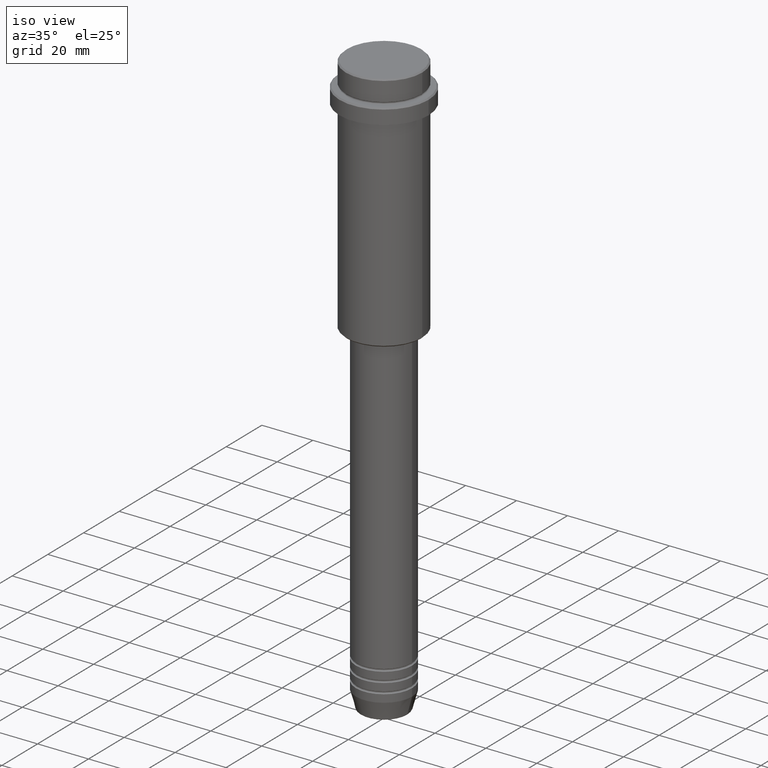
[diagram: clean part render]
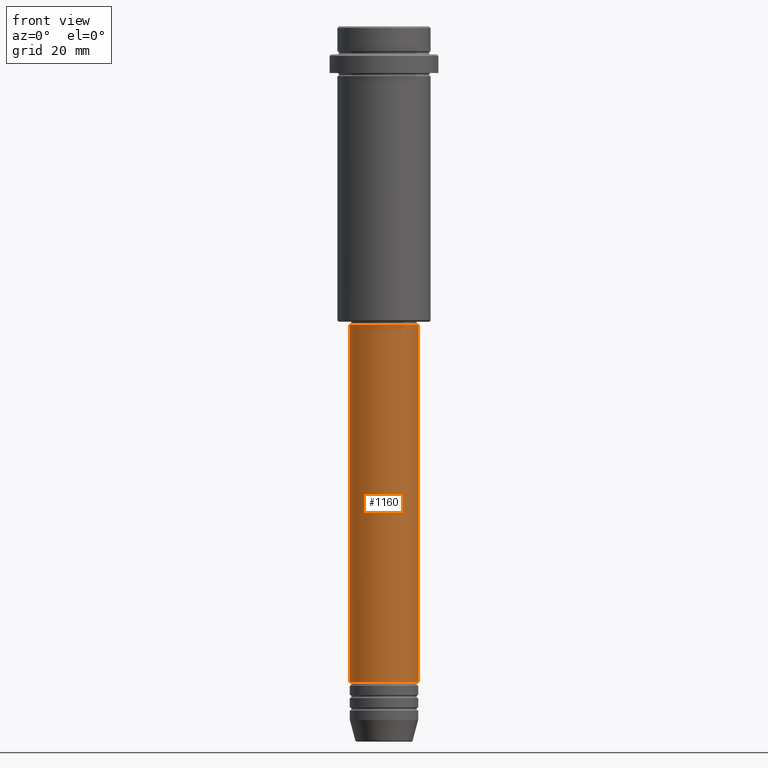
[diagram: tour spotlight — one face highlighted and labeled with its STEP entity id]
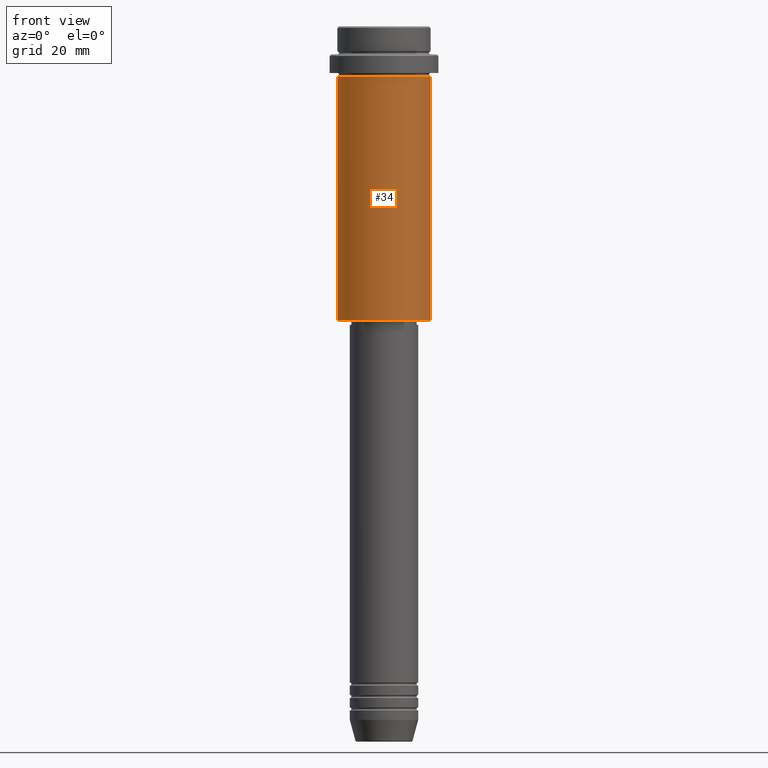
[diagram: tour spotlight — one face highlighted and labeled with its STEP entity id]
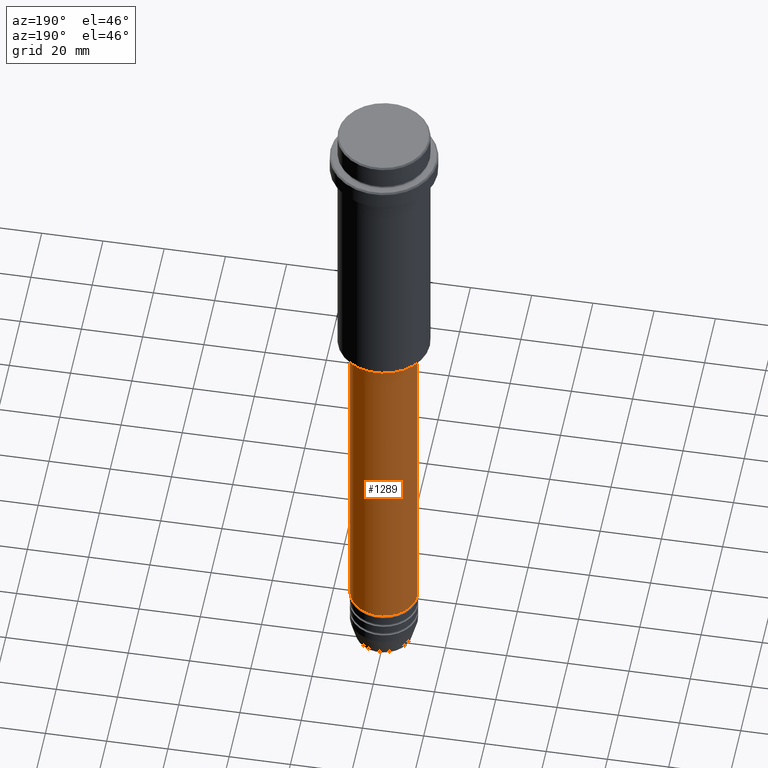
[diagram: tour spotlight — one face highlighted and labeled with its STEP entity id]
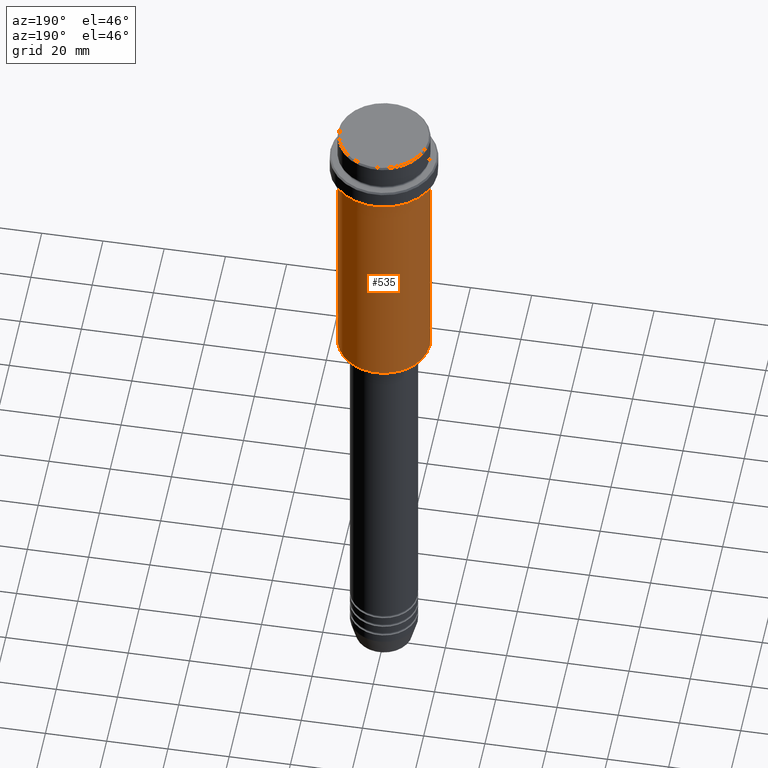
[diagram: tour spotlight — one face highlighted and labeled with its STEP entity id]
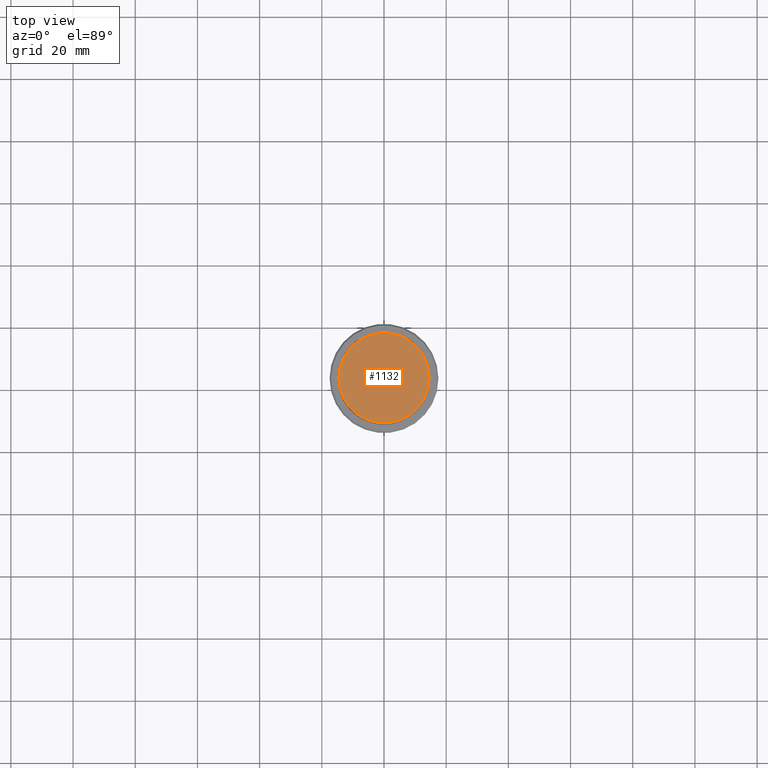
[diagram: tour spotlight — one face highlighted and labeled with its STEP entity id]
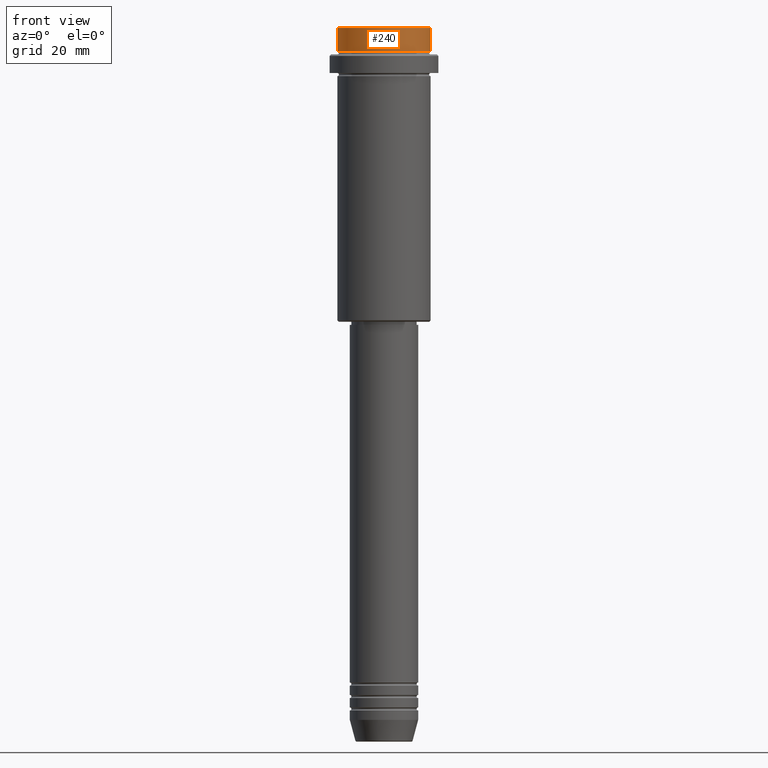
[diagram: tour spotlight — one face highlighted and labeled with its STEP entity id]
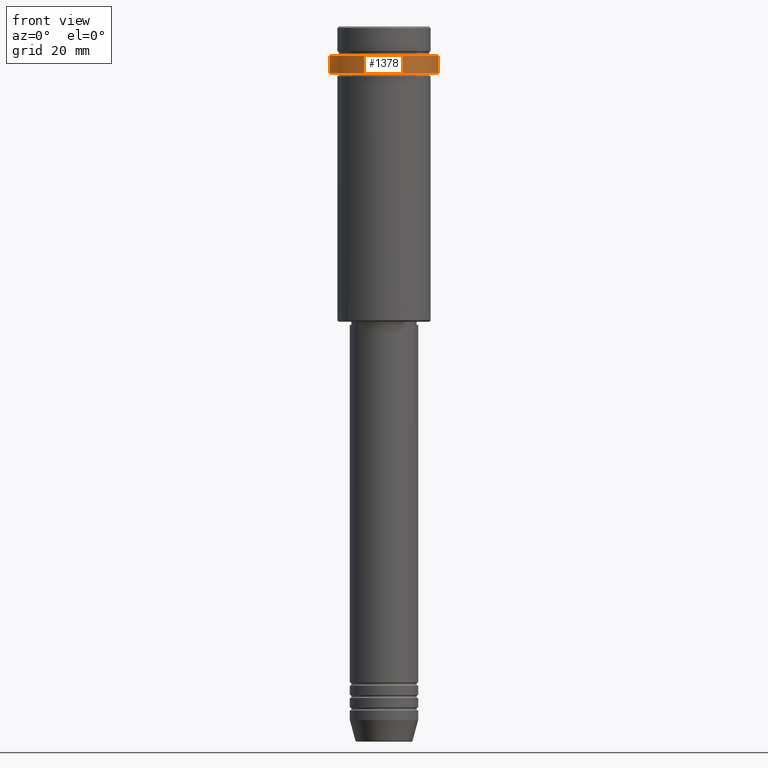
[diagram: tour spotlight — one face highlighted and labeled with its STEP entity id]
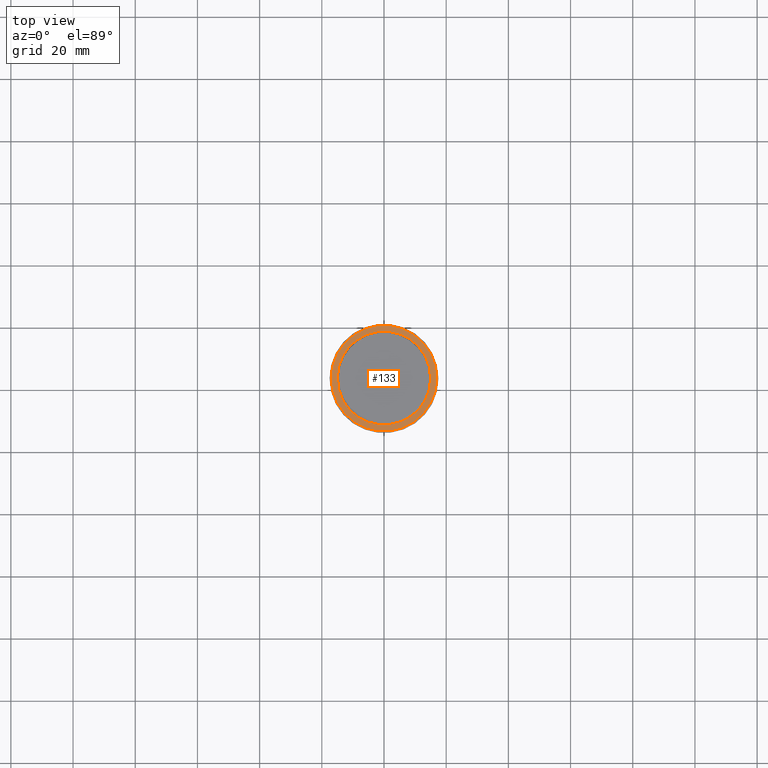
[diagram: tour spotlight — one face highlighted and labeled with its STEP entity id]
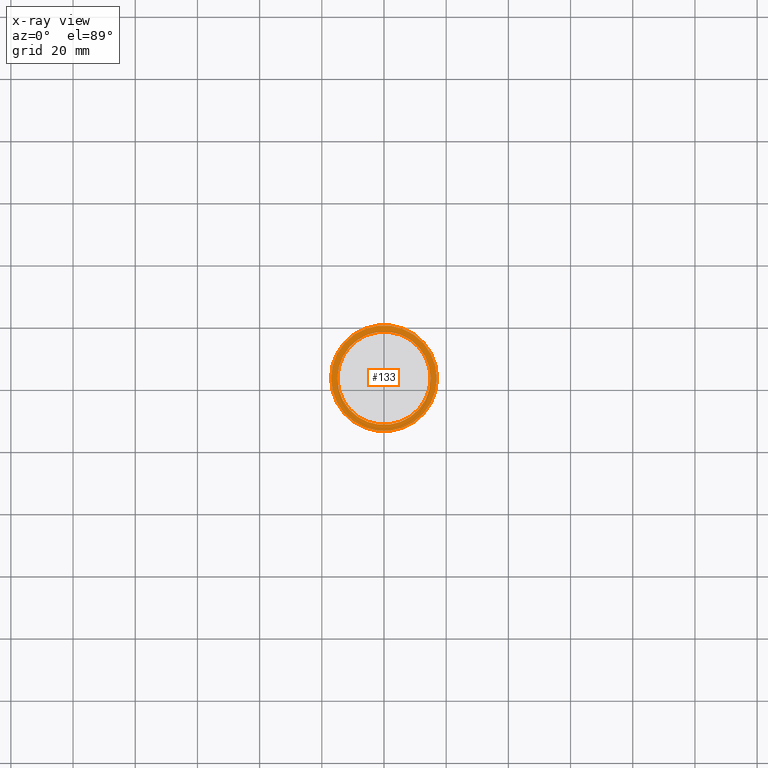
[diagram: x-ray of the same camera — body ghosted, this tour face saturated]
A machine part: a face-by-face anatomy tour. The part has 52 B-rep faces; the first image is the clean iso view, then the 8 largest visible faces are spotlighted one at a time (largest first), each with its STEP entity span.

Face 1 — front view, entity #1160. In plain terms, the highlighted cylindrical surface (edge-blend (fillet) strip) has radius 11 mm, axis along (-0, -0, 1).
Definition (entity closure, byte-faithful):
#98 = EDGE_CURVE ( 'NONE', #656, #1317, #645, .T. ) ;
#171 = FACE_OUTER_BOUND ( 'NONE', #957, .T. ) ;
#201 = VERTEX_POINT ( 'NONE', #1298 ) ;
#209 = CARTESIAN_POINT ( 'NONE',  ( 0.000000000000000000, 0.000000000000000000, -95.99999999999997158 ) ) ;
#212 = ORIENTED_EDGE ( 'NONE', *, *, #98, .T. ) ;
#323 = CARTESIAN_POINT ( 'NONE',  ( -11.00000000000000000, 1.347111479062088405E-15, -210.9999999999998579 ) ) ;
#349 = ORIENTED_EDGE ( 'NONE', *, *, #1293, .F. ) ;
#424 = AXIS2_PLACEMENT_3D ( 'NONE', #599, #1270, #1076 ) ;
#427 = CARTESIAN_POINT ( 'NONE',  ( 10.99999999999999822, 0.000000000000000000, -95.99999999999997158 ) ) ;
#428 = CARTESIAN_POINT ( 'NONE',  ( 0.000000000000000000, 0.000000000000000000, -210.9999999999998579 ) ) ;
#521 = CIRCLE ( 'NONE', #925, 10.99999999999999822 ) ;
#544 = LINE ( 'NONE', #784, #926 ) ;
#552 = DIRECTION ( 'NONE',  ( 1.000000000000000000, 0.000000000000000000, 0.000000000000000000 ) ) ;
#599 = CARTESIAN_POINT ( 'NONE',  ( 0.000000000000000000, 0.000000000000000000, 0.000000000000000000 ) ) ;
#609 = AXIS2_PLACEMENT_3D ( 'NONE', #428, #899, #552 ) ;
#645 = LINE ( 'NONE', #749, #709 ) ;
#656 = VERTEX_POINT ( 'NONE', #1236 ) ;
#709 = VECTOR ( 'NONE', #880, 1000.000000000000000 ) ;
#749 = CARTESIAN_POINT ( 'NONE',  ( 11.00000000000000000, 0.000000000000000000, 0.000000000000000000 ) ) ;
#784 = CARTESIAN_POINT ( 'NONE',  ( -11.00000000000000000, 1.347111479062088405E-15, 0.000000000000000000 ) ) ;
#864 = EDGE_CURVE ( 'NONE', #1320, #656, #1209, .T. ) ;
#880 = DIRECTION ( 'NONE',  ( -0.000000000000000000, -0.000000000000000000, 1.000000000000000000 ) ) ;
#899 = DIRECTION ( 'NONE',  ( -0.000000000000000000, -0.000000000000000000, 1.000000000000000000 ) ) ;
#925 = AXIS2_PLACEMENT_3D ( 'NONE', #209, #1300, #1110 ) ;
#926 = VECTOR ( 'NONE', #982, 1000.000000000000000 ) ;
#957 = EDGE_LOOP ( 'NONE', ( #1402, #1416, #212, #349 ) ) ;
#982 = DIRECTION ( 'NONE',  ( -0.000000000000000000, -0.000000000000000000, 1.000000000000000000 ) ) ;
#1076 = DIRECTION ( 'NONE',  ( 1.000000000000000000, 0.000000000000000000, 0.000000000000000000 ) ) ;
#1110 = DIRECTION ( 'NONE',  ( 1.000000000000000000, 0.000000000000000000, 0.000000000000000000 ) ) ;
#1160 = ADVANCED_FACE ( 'NONE', ( #171 ), #1280, .T. ) ;
#1209 = CIRCLE ( 'NONE', #609, 11.00000000000000000 ) ;
#1236 = CARTESIAN_POINT ( 'NONE',  ( 11.00000000000000000, 0.000000000000000000, -210.9999999999998579 ) ) ;
#1270 = DIRECTION ( 'NONE',  ( -0.000000000000000000, -0.000000000000000000, 1.000000000000000000 ) ) ;
#1280 = CYLINDRICAL_SURFACE ( 'NONE', #424, 11.00000000000000000 ) ;
#1293 = EDGE_CURVE ( 'NONE', #201, #1317, #521, .T. ) ;
#1298 = CARTESIAN_POINT ( 'NONE',  ( -10.99999999999999822, 1.347111479062088207E-15, -95.99999999999997158 ) ) ;
#1300 = DIRECTION ( 'NONE',  ( -0.000000000000000000, -0.000000000000000000, 1.000000000000000000 ) ) ;
#1317 = VERTEX_POINT ( 'NONE', #427 ) ;
#1320 = VERTEX_POINT ( 'NONE', #323 ) ;
#1327 = EDGE_CURVE ( 'NONE', #1320, #201, #544, .T. ) ;
#1402 = ORIENTED_EDGE ( 'NONE', *, *, #1327, .F. ) ;
#1416 = ORIENTED_EDGE ( 'NONE', *, *, #864, .T. ) ;

Face 2 — front view, entity #34. In plain terms, the highlighted cylindrical surface (partial cylindrical patch) has radius 15 mm, axis along (-0, -0, 1).
Definition (entity closure, byte-faithful):
#33 = CARTESIAN_POINT ( 'NONE',  ( 15.00000000000000178, 0.000000000000000000, -16.00000000000000000 ) ) ;
#34 = ADVANCED_FACE ( 'NONE', ( #1061 ), #70, .T. ) ;
#53 = EDGE_CURVE ( 'NONE', #238, #373, #1181, .T. ) ;
#70 = CYLINDRICAL_SURFACE ( 'NONE', #83, 15.00000000000000000 ) ;
#83 = AXIS2_PLACEMENT_3D ( 'NONE', #367, #1023, #137 ) ;
#91 = VECTOR ( 'NONE', #381, 1000.000000000000000 ) ;
#115 = ORIENTED_EDGE ( 'NONE', *, *, #393, .F. ) ;
#129 = CARTESIAN_POINT ( 'NONE',  ( -15.00000000000000355, 1.836970198721029983E-15, -16.00000000000000000 ) ) ;
#137 = DIRECTION ( 'NONE',  ( 1.000000000000000000, 0.000000000000000000, 0.000000000000000000 ) ) ;
#166 = CARTESIAN_POINT ( 'NONE',  ( 15.00000000000000000, 0.000000000000000000, 0.000000000000000000 ) ) ;
#192 = ORIENTED_EDGE ( 'NONE', *, *, #53, .F. ) ;
#238 = VERTEX_POINT ( 'NONE', #129 ) ;
#295 = LINE ( 'NONE', #166, #91 ) ;
#340 = DIRECTION ( 'NONE',  ( -0.000000000000000000, -0.000000000000000000, 1.000000000000000000 ) ) ;
#367 = CARTESIAN_POINT ( 'NONE',  ( 0.000000000000000000, 0.000000000000000000, 0.000000000000000000 ) ) ;
#373 = VERTEX_POINT ( 'NONE', #33 ) ;
#381 = DIRECTION ( 'NONE',  ( -0.000000000000000000, -0.000000000000000000, 1.000000000000000000 ) ) ;
#393 = EDGE_CURVE ( 'NONE', #527, #238, #462, .T. ) ;
#431 = ORIENTED_EDGE ( 'NONE', *, *, #1175, .T. ) ;
#462 = LINE ( 'NONE', #921, #566 ) ;
#527 = VERTEX_POINT ( 'NONE', #545 ) ;
#538 = CARTESIAN_POINT ( 'NONE',  ( 0.000000000000000000, 0.000000000000000000, -94.49999999999992895 ) ) ;
#545 = CARTESIAN_POINT ( 'NONE',  ( -15.00000000000000000, 1.836970198721029589E-15, -94.49999999999992895 ) ) ;
#546 = DIRECTION ( 'NONE',  ( -0.000000000000000000, -0.000000000000000000, 1.000000000000000000 ) ) ;
#561 = AXIS2_PLACEMENT_3D ( 'NONE', #1329, #340, #793 ) ;
#566 = VECTOR ( 'NONE', #955, 1000.000000000000000 ) ;
#573 = EDGE_LOOP ( 'NONE', ( #115, #750, #431, #192 ) ) ;
#750 = ORIENTED_EDGE ( 'NONE', *, *, #841, .T. ) ;
#788 = CIRCLE ( 'NONE', #1105, 15.00000000000000000 ) ;
#793 = DIRECTION ( 'NONE',  ( 1.000000000000000000, 0.000000000000000000, 0.000000000000000000 ) ) ;
#841 = EDGE_CURVE ( 'NONE', #527, #939, #788, .T. ) ;
#921 = CARTESIAN_POINT ( 'NONE',  ( -15.00000000000000000, 1.836970198721029589E-15, 0.000000000000000000 ) ) ;
#939 = VERTEX_POINT ( 'NONE', #1112 ) ;
#955 = DIRECTION ( 'NONE',  ( -0.000000000000000000, -0.000000000000000000, 1.000000000000000000 ) ) ;
#1005 = DIRECTION ( 'NONE',  ( -1.000000000000000000, 0.000000000000000000, 0.000000000000000000 ) ) ;
#1023 = DIRECTION ( 'NONE',  ( -0.000000000000000000, -0.000000000000000000, 1.000000000000000000 ) ) ;
#1061 = FACE_OUTER_BOUND ( 'NONE', #573, .T. ) ;
#1105 = AXIS2_PLACEMENT_3D ( 'NONE', #538, #546, #1005 ) ;
#1112 = CARTESIAN_POINT ( 'NONE',  ( 15.00000000000000000, 0.000000000000000000, -94.49999999999992895 ) ) ;
#1175 = EDGE_CURVE ( 'NONE', #939, #373, #295, .T. ) ;
#1181 = CIRCLE ( 'NONE', #561, 15.00000000000000178 ) ;
#1329 = CARTESIAN_POINT ( 'NONE',  ( 0.000000000000000000, 0.000000000000000000, -16.00000000000000000 ) ) ;

Face 3 — auxiliary view, entity #1289. In plain terms, the highlighted cylindrical surface (edge-blend (fillet) strip) has radius 11 mm, axis along (-0, -0, 1).
Definition (entity closure, byte-faithful):
#13 = AXIS2_PLACEMENT_3D ( 'NONE', #475, #346, #155 ) ;
#19 = ORIENTED_EDGE ( 'NONE', *, *, #245, .T. ) ;
#62 = AXIS2_PLACEMENT_3D ( 'NONE', #564, #929, #1353 ) ;
#98 = EDGE_CURVE ( 'NONE', #656, #1317, #645, .T. ) ;
#155 = DIRECTION ( 'NONE',  ( 1.000000000000000000, 0.000000000000000000, 0.000000000000000000 ) ) ;
#201 = VERTEX_POINT ( 'NONE', #1298 ) ;
#207 = ORIENTED_EDGE ( 'NONE', *, *, #1417, .F. ) ;
#245 = EDGE_CURVE ( 'NONE', #656, #1320, #1015, .T. ) ;
#268 = EDGE_LOOP ( 'NONE', ( #19, #1358, #207, #766 ) ) ;
#323 = CARTESIAN_POINT ( 'NONE',  ( -11.00000000000000000, 1.347111479062088405E-15, -210.9999999999998579 ) ) ;
#346 = DIRECTION ( 'NONE',  ( -0.000000000000000000, -0.000000000000000000, 1.000000000000000000 ) ) ;
#427 = CARTESIAN_POINT ( 'NONE',  ( 10.99999999999999822, 0.000000000000000000, -95.99999999999997158 ) ) ;
#430 = CARTESIAN_POINT ( 'NONE',  ( 0.000000000000000000, 0.000000000000000000, 0.000000000000000000 ) ) ;
#475 = CARTESIAN_POINT ( 'NONE',  ( 0.000000000000000000, 0.000000000000000000, -95.99999999999997158 ) ) ;
#544 = LINE ( 'NONE', #784, #926 ) ;
#564 = CARTESIAN_POINT ( 'NONE',  ( 0.000000000000000000, 0.000000000000000000, -210.9999999999998579 ) ) ;
#615 = CIRCLE ( 'NONE', #13, 10.99999999999999822 ) ;
#645 = LINE ( 'NONE', #749, #709 ) ;
#656 = VERTEX_POINT ( 'NONE', #1236 ) ;
#709 = VECTOR ( 'NONE', #880, 1000.000000000000000 ) ;
#749 = CARTESIAN_POINT ( 'NONE',  ( 11.00000000000000000, 0.000000000000000000, 0.000000000000000000 ) ) ;
#766 = ORIENTED_EDGE ( 'NONE', *, *, #98, .F. ) ;
#784 = CARTESIAN_POINT ( 'NONE',  ( -11.00000000000000000, 1.347111479062088405E-15, 0.000000000000000000 ) ) ;
#880 = DIRECTION ( 'NONE',  ( -0.000000000000000000, -0.000000000000000000, 1.000000000000000000 ) ) ;
#926 = VECTOR ( 'NONE', #982, 1000.000000000000000 ) ;
#929 = DIRECTION ( 'NONE',  ( -0.000000000000000000, -0.000000000000000000, 1.000000000000000000 ) ) ;
#982 = DIRECTION ( 'NONE',  ( -0.000000000000000000, -0.000000000000000000, 1.000000000000000000 ) ) ;
#1015 = CIRCLE ( 'NONE', #62, 11.00000000000000000 ) ;
#1104 = FACE_OUTER_BOUND ( 'NONE', #268, .T. ) ;
#1193 = DIRECTION ( 'NONE',  ( -0.000000000000000000, -0.000000000000000000, 1.000000000000000000 ) ) ;
#1236 = CARTESIAN_POINT ( 'NONE',  ( 11.00000000000000000, 0.000000000000000000, -210.9999999999998579 ) ) ;
#1289 = ADVANCED_FACE ( 'NONE', ( #1104 ), #1400, .T. ) ;
#1298 = CARTESIAN_POINT ( 'NONE',  ( -10.99999999999999822, 1.347111479062088207E-15, -95.99999999999997158 ) ) ;
#1317 = VERTEX_POINT ( 'NONE', #427 ) ;
#1320 = VERTEX_POINT ( 'NONE', #323 ) ;
#1327 = EDGE_CURVE ( 'NONE', #1320, #201, #544, .T. ) ;
#1353 = DIRECTION ( 'NONE',  ( 1.000000000000000000, 0.000000000000000000, 0.000000000000000000 ) ) ;
#1358 = ORIENTED_EDGE ( 'NONE', *, *, #1327, .T. ) ;
#1388 = AXIS2_PLACEMENT_3D ( 'NONE', #430, #1193, #1407 ) ;
#1400 = CYLINDRICAL_SURFACE ( 'NONE', #1388, 11.00000000000000000 ) ;
#1407 = DIRECTION ( 'NONE',  ( 1.000000000000000000, 0.000000000000000000, 0.000000000000000000 ) ) ;
#1417 = EDGE_CURVE ( 'NONE', #1317, #201, #615, .T. ) ;

Face 4 — auxiliary view, entity #535. In plain terms, the highlighted cylindrical surface (partial cylindrical patch) has radius 15 mm, axis along (-0, -0, 1).
Definition (entity closure, byte-faithful):
#33 = CARTESIAN_POINT ( 'NONE',  ( 15.00000000000000178, 0.000000000000000000, -16.00000000000000000 ) ) ;
#91 = VECTOR ( 'NONE', #381, 1000.000000000000000 ) ;
#129 = CARTESIAN_POINT ( 'NONE',  ( -15.00000000000000355, 1.836970198721029983E-15, -16.00000000000000000 ) ) ;
#166 = CARTESIAN_POINT ( 'NONE',  ( 15.00000000000000000, 0.000000000000000000, 0.000000000000000000 ) ) ;
#169 = DIRECTION ( 'NONE',  ( -0.000000000000000000, -0.000000000000000000, 1.000000000000000000 ) ) ;
#172 = ORIENTED_EDGE ( 'NONE', *, *, #355, .F. ) ;
#200 = CIRCLE ( 'NONE', #1121, 15.00000000000000178 ) ;
#213 = CARTESIAN_POINT ( 'NONE',  ( 0.000000000000000000, 0.000000000000000000, -16.00000000000000000 ) ) ;
#216 = CARTESIAN_POINT ( 'NONE',  ( 0.000000000000000000, 0.000000000000000000, 0.000000000000000000 ) ) ;
#238 = VERTEX_POINT ( 'NONE', #129 ) ;
#288 = AXIS2_PLACEMENT_3D ( 'NONE', #922, #327, #459 ) ;
#295 = LINE ( 'NONE', #166, #91 ) ;
#327 = DIRECTION ( 'NONE',  ( -0.000000000000000000, -0.000000000000000000, 1.000000000000000000 ) ) ;
#345 = DIRECTION ( 'NONE',  ( 1.000000000000000000, 0.000000000000000000, 0.000000000000000000 ) ) ;
#355 = EDGE_CURVE ( 'NONE', #373, #238, #200, .T. ) ;
#373 = VERTEX_POINT ( 'NONE', #33 ) ;
#381 = DIRECTION ( 'NONE',  ( -0.000000000000000000, -0.000000000000000000, 1.000000000000000000 ) ) ;
#393 = EDGE_CURVE ( 'NONE', #527, #238, #462, .T. ) ;
#440 = AXIS2_PLACEMENT_3D ( 'NONE', #216, #169, #721 ) ;
#459 = DIRECTION ( 'NONE',  ( -1.000000000000000000, 0.000000000000000000, 0.000000000000000000 ) ) ;
#462 = LINE ( 'NONE', #921, #566 ) ;
#512 = EDGE_CURVE ( 'NONE', #939, #527, #920, .T. ) ;
#527 = VERTEX_POINT ( 'NONE', #545 ) ;
#535 = ADVANCED_FACE ( 'NONE', ( #888 ), #1202, .T. ) ;
#545 = CARTESIAN_POINT ( 'NONE',  ( -15.00000000000000000, 1.836970198721029589E-15, -94.49999999999992895 ) ) ;
#566 = VECTOR ( 'NONE', #955, 1000.000000000000000 ) ;
#657 = DIRECTION ( 'NONE',  ( -0.000000000000000000, -0.000000000000000000, 1.000000000000000000 ) ) ;
#721 = DIRECTION ( 'NONE',  ( 1.000000000000000000, 0.000000000000000000, 0.000000000000000000 ) ) ;
#888 = FACE_OUTER_BOUND ( 'NONE', #1198, .T. ) ;
#920 = CIRCLE ( 'NONE', #288, 15.00000000000000000 ) ;
#921 = CARTESIAN_POINT ( 'NONE',  ( -15.00000000000000000, 1.836970198721029589E-15, 0.000000000000000000 ) ) ;
#922 = CARTESIAN_POINT ( 'NONE',  ( 0.000000000000000000, 0.000000000000000000, -94.49999999999992895 ) ) ;
#930 = ORIENTED_EDGE ( 'NONE', *, *, #393, .T. ) ;
#939 = VERTEX_POINT ( 'NONE', #1112 ) ;
#955 = DIRECTION ( 'NONE',  ( -0.000000000000000000, -0.000000000000000000, 1.000000000000000000 ) ) ;
#970 = ORIENTED_EDGE ( 'NONE', *, *, #512, .T. ) ;
#1112 = CARTESIAN_POINT ( 'NONE',  ( 15.00000000000000000, 0.000000000000000000, -94.49999999999992895 ) ) ;
#1121 = AXIS2_PLACEMENT_3D ( 'NONE', #213, #657, #345 ) ;
#1130 = ORIENTED_EDGE ( 'NONE', *, *, #1175, .F. ) ;
#1175 = EDGE_CURVE ( 'NONE', #939, #373, #295, .T. ) ;
#1198 = EDGE_LOOP ( 'NONE', ( #970, #930, #172, #1130 ) ) ;
#1202 = CYLINDRICAL_SURFACE ( 'NONE', #440, 15.00000000000000000 ) ;

Face 5 — top view, entity #1132. In plain terms, the highlighted planar face has unit normal (0, -0, 1).
Definition (entity closure, byte-faithful):
#36 = CIRCLE ( 'NONE', #1324, 14.50000000000001066 ) ;
#56 = EDGE_CURVE ( 'NONE', #219, #1176, #36, .T. ) ;
#182 = CIRCLE ( 'NONE', #976, 14.50000000000001066 ) ;
#219 = VERTEX_POINT ( 'NONE', #678 ) ;
#259 = ORIENTED_EDGE ( 'NONE', *, *, #56, .T. ) ;
#379 = DIRECTION ( 'NONE',  ( 1.000000000000000000, 0.000000000000000000, 0.000000000000000000 ) ) ;
#382 = AXIS2_PLACEMENT_3D ( 'NONE', #1263, #1068, #591 ) ;
#403 = FACE_OUTER_BOUND ( 'NONE', #795, .T. ) ;
#536 = CARTESIAN_POINT ( 'NONE',  ( 0.000000000000000000, 0.000000000000000000, 0.000000000000000000 ) ) ;
#550 = DIRECTION ( 'NONE',  ( -0.000000000000000000, -0.000000000000000000, 1.000000000000000000 ) ) ;
#591 = DIRECTION ( 'NONE',  ( 1.000000000000000000, 0.000000000000000000, 0.000000000000000000 ) ) ;
#678 = CARTESIAN_POINT ( 'NONE',  ( 14.50000000000001066, 1.806354028742346591E-15, 0.000000000000000000 ) ) ;
#795 = EDGE_LOOP ( 'NONE', ( #946, #259 ) ) ;
#910 = CARTESIAN_POINT ( 'NONE',  ( 0.000000000000000000, 0.000000000000000000, 0.000000000000000000 ) ) ;
#946 = ORIENTED_EDGE ( 'NONE', *, *, #1230, .T. ) ;
#976 = AXIS2_PLACEMENT_3D ( 'NONE', #536, #550, #1002 ) ;
#1002 = DIRECTION ( 'NONE',  ( 1.000000000000000000, 0.000000000000000000, 0.000000000000000000 ) ) ;
#1068 = DIRECTION ( 'NONE',  ( 0.000000000000000000, -0.000000000000000000, 1.000000000000000000 ) ) ;
#1132 = ADVANCED_FACE ( 'NONE', ( #403 ), #1168, .T. ) ;
#1138 = DIRECTION ( 'NONE',  ( -0.000000000000000000, -0.000000000000000000, 1.000000000000000000 ) ) ;
#1168 = PLANE ( 'NONE',  #382 ) ;
#1172 = CARTESIAN_POINT ( 'NONE',  ( -14.50000000000001066, 0.000000000000000000, 0.000000000000000000 ) ) ;
#1176 = VERTEX_POINT ( 'NONE', #1172 ) ;
#1230 = EDGE_CURVE ( 'NONE', #1176, #219, #182, .T. ) ;
#1263 = CARTESIAN_POINT ( 'NONE',  ( 0.000000000000000000, 0.000000000000000000, 0.000000000000000000 ) ) ;
#1324 = AXIS2_PLACEMENT_3D ( 'NONE', #910, #1138, #379 ) ;

Face 6 — front view, entity #240. In plain terms, the highlighted cylindrical surface (partial cylindrical patch) has radius 15 mm, axis along (-0, -0, 1).
Definition (entity closure, byte-faithful):
#8 = AXIS2_PLACEMENT_3D ( 'NONE', #30, #912, #571 ) ;
#22 = DIRECTION ( 'NONE',  ( -0.000000000000000000, -0.000000000000000000, 1.000000000000000000 ) ) ;
#25 = CARTESIAN_POINT ( 'NONE',  ( 0.000000000000000000, 0.000000000000000000, -7.999999999999998224 ) ) ;
#27 = DIRECTION ( 'NONE',  ( 1.000000000000000000, 0.000000000000000000, 0.000000000000000000 ) ) ;
#30 = CARTESIAN_POINT ( 'NONE',  ( 0.000000000000000000, 0.000000000000000000, -0.4999999999999831246 ) ) ;
#31 = DIRECTION ( 'NONE',  ( -0.000000000000000000, -0.000000000000000000, 1.000000000000000000 ) ) ;
#59 = CARTESIAN_POINT ( 'NONE',  ( 15.00000000000000000, 0.000000000000000000, -0.4999999999999831246 ) ) ;
#74 = CARTESIAN_POINT ( 'NONE',  ( -15.00000000000000000, 1.836970198721029589E-15, 0.000000000000000000 ) ) ;
#189 = DIRECTION ( 'NONE',  ( 1.000000000000000000, 0.000000000000000000, 0.000000000000000000 ) ) ;
#198 = ORIENTED_EDGE ( 'NONE', *, *, #306, .T. ) ;
#211 = CARTESIAN_POINT ( 'NONE',  ( 15.00000000000000000, 0.000000000000000000, -7.999999999999998224 ) ) ;
#240 = ADVANCED_FACE ( 'NONE', ( #1083 ), #307, .T. ) ;
#293 = DIRECTION ( 'NONE',  ( -0.000000000000000000, -0.000000000000000000, 1.000000000000000000 ) ) ;
#306 = EDGE_CURVE ( 'NONE', #879, #414, #1255, .T. ) ;
#307 = CYLINDRICAL_SURFACE ( 'NONE', #1252, 15.00000000000000000 ) ;
#414 = VERTEX_POINT ( 'NONE', #59 ) ;
#471 = ORIENTED_EDGE ( 'NONE', *, *, #729, .F. ) ;
#518 = CIRCLE ( 'NONE', #8, 15.00000000000000000 ) ;
#560 = VERTEX_POINT ( 'NONE', #734 ) ;
#571 = DIRECTION ( 'NONE',  ( 1.000000000000000000, 0.000000000000000000, 0.000000000000000000 ) ) ;
#638 = LINE ( 'NONE', #74, #874 ) ;
#667 = CARTESIAN_POINT ( 'NONE',  ( -15.00000000000000000, 1.836970198721029589E-15, -0.4999999999999831246 ) ) ;
#729 = EDGE_CURVE ( 'NONE', #560, #1228, #638, .T. ) ;
#734 = CARTESIAN_POINT ( 'NONE',  ( -15.00000000000000000, 1.836970198721029589E-15, -7.999999999999998224 ) ) ;
#738 = AXIS2_PLACEMENT_3D ( 'NONE', #25, #22, #27 ) ;
#763 = CIRCLE ( 'NONE', #738, 15.00000000000000000 ) ;
#800 = ORIENTED_EDGE ( 'NONE', *, *, #802, .T. ) ;
#802 = EDGE_CURVE ( 'NONE', #560, #879, #763, .T. ) ;
#874 = VECTOR ( 'NONE', #1301, 1000.000000000000000 ) ;
#879 = VERTEX_POINT ( 'NONE', #211 ) ;
#912 = DIRECTION ( 'NONE',  ( 0.000000000000000000, 0.000000000000000000, -1.000000000000000000 ) ) ;
#1022 = EDGE_CURVE ( 'NONE', #414, #1228, #518, .T. ) ;
#1083 = FACE_OUTER_BOUND ( 'NONE', #1384, .T. ) ;
#1228 = VERTEX_POINT ( 'NONE', #667 ) ;
#1252 = AXIS2_PLACEMENT_3D ( 'NONE', #1288, #293, #189 ) ;
#1255 = LINE ( 'NONE', #1341, #1403 ) ;
#1288 = CARTESIAN_POINT ( 'NONE',  ( 0.000000000000000000, 0.000000000000000000, 0.000000000000000000 ) ) ;
#1301 = DIRECTION ( 'NONE',  ( -0.000000000000000000, -0.000000000000000000, 1.000000000000000000 ) ) ;
#1341 = CARTESIAN_POINT ( 'NONE',  ( 15.00000000000000000, 0.000000000000000000, 0.000000000000000000 ) ) ;
#1376 = ORIENTED_EDGE ( 'NONE', *, *, #1022, .T. ) ;
#1384 = EDGE_LOOP ( 'NONE', ( #471, #800, #198, #1376 ) ) ;
#1403 = VECTOR ( 'NONE', #31, 1000.000000000000000 ) ;

Face 7 — front view, entity #1378. In plain terms, the highlighted cylindrical surface (partial cylindrical patch) has radius 17.5 mm, axis along (-0, -0, 1).
Definition (entity closure, byte-faithful):
#17 = CYLINDRICAL_SURFACE ( 'NONE', #94, 17.50000000000000000 ) ;
#68 = VERTEX_POINT ( 'NONE', #476 ) ;
#85 = CIRCLE ( 'NONE', #239, 17.50000000000000000 ) ;
#94 = AXIS2_PLACEMENT_3D ( 'NONE', #705, #570, #1021 ) ;
#124 = EDGE_CURVE ( 'NONE', #394, #68, #262, .T. ) ;
#143 = CARTESIAN_POINT ( 'NONE',  ( 0.000000000000000000, 0.000000000000000000, -9.499999999999971578 ) ) ;
#151 = VERTEX_POINT ( 'NONE', #524 ) ;
#230 = FACE_OUTER_BOUND ( 'NONE', #246, .T. ) ;
#239 = AXIS2_PLACEMENT_3D ( 'NONE', #143, #684, #819 ) ;
#246 = EDGE_LOOP ( 'NONE', ( #789, #908, #328, #640 ) ) ;
#256 = EDGE_CURVE ( 'NONE', #988, #151, #85, .T. ) ;
#262 = CIRCLE ( 'NONE', #1207, 17.50000000000000000 ) ;
#265 = DIRECTION ( 'NONE',  ( -0.000000000000000000, -0.000000000000000000, 1.000000000000000000 ) ) ;
#269 = DIRECTION ( 'NONE',  ( -0.000000000000000000, -0.000000000000000000, 1.000000000000000000 ) ) ;
#328 = ORIENTED_EDGE ( 'NONE', *, *, #375, .T. ) ;
#371 = CARTESIAN_POINT ( 'NONE',  ( 17.50000000000000000, 0.000000000000000000, -9.499999999999971578 ) ) ;
#375 = EDGE_CURVE ( 'NONE', #68, #988, #1259, .T. ) ;
#394 = VERTEX_POINT ( 'NONE', #708 ) ;
#416 = DIRECTION ( 'NONE',  ( -0.000000000000000000, -0.000000000000000000, 1.000000000000000000 ) ) ;
#441 = VECTOR ( 'NONE', #265, 1000.000000000000000 ) ;
#476 = CARTESIAN_POINT ( 'NONE',  ( 17.50000000000000000, 0.000000000000000000, -15.00000000000000000 ) ) ;
#524 = CARTESIAN_POINT ( 'NONE',  ( -17.50000000000000000, 2.143131898507868248E-15, -9.499999999999971578 ) ) ;
#570 = DIRECTION ( 'NONE',  ( -0.000000000000000000, -0.000000000000000000, 1.000000000000000000 ) ) ;
#640 = ORIENTED_EDGE ( 'NONE', *, *, #256, .T. ) ;
#684 = DIRECTION ( 'NONE',  ( 0.000000000000000000, 0.000000000000000000, -1.000000000000000000 ) ) ;
#700 = LINE ( 'NONE', #1357, #441 ) ;
#705 = CARTESIAN_POINT ( 'NONE',  ( 0.000000000000000000, 0.000000000000000000, 0.000000000000000000 ) ) ;
#708 = CARTESIAN_POINT ( 'NONE',  ( -17.50000000000000000, 2.143131898507868248E-15, -15.00000000000000000 ) ) ;
#757 = DIRECTION ( 'NONE',  ( 1.000000000000000000, 0.000000000000000000, 0.000000000000000000 ) ) ;
#789 = ORIENTED_EDGE ( 'NONE', *, *, #985, .F. ) ;
#819 = DIRECTION ( 'NONE',  ( 1.000000000000000000, 0.000000000000000000, 0.000000000000000000 ) ) ;
#908 = ORIENTED_EDGE ( 'NONE', *, *, #124, .T. ) ;
#985 = EDGE_CURVE ( 'NONE', #394, #151, #700, .T. ) ;
#988 = VERTEX_POINT ( 'NONE', #371 ) ;
#1021 = DIRECTION ( 'NONE',  ( 1.000000000000000000, 0.000000000000000000, 0.000000000000000000 ) ) ;
#1059 = CARTESIAN_POINT ( 'NONE',  ( 17.50000000000000000, 0.000000000000000000, 0.000000000000000000 ) ) ;
#1074 = CARTESIAN_POINT ( 'NONE',  ( 0.000000000000000000, 0.000000000000000000, -15.00000000000000000 ) ) ;
#1207 = AXIS2_PLACEMENT_3D ( 'NONE', #1074, #416, #757 ) ;
#1259 = LINE ( 'NONE', #1059, #1404 ) ;
#1357 = CARTESIAN_POINT ( 'NONE',  ( -17.50000000000000000, 2.143131898507868248E-15, 0.000000000000000000 ) ) ;
#1378 = ADVANCED_FACE ( 'NONE', ( #230 ), #17, .T. ) ;
#1404 = VECTOR ( 'NONE', #269, 1000.000000000000000 ) ;

Face 8 — top view, entity #133. An x-ray twin of the same camera follows (body ghosted, this face saturated) — the face is partly hidden behind the body. In plain terms, the highlighted planar face has unit normal (0, -0, 1).
Definition (entity closure, byte-faithful):
#55 = CARTESIAN_POINT ( 'NONE',  ( -17.00000000000001421, 0.000000000000000000, -9.000000000000000000 ) ) ;
#63 = CARTESIAN_POINT ( 'NONE',  ( 0.000000000000000000, 0.000000000000000000, -9.000000000000000000 ) ) ;
#131 = AXIS2_PLACEMENT_3D ( 'NONE', #519, #602, #487 ) ;
#133 = ADVANCED_FACE ( 'NONE', ( #1185, #513 ), #1191, .T. ) ;
#183 = CARTESIAN_POINT ( 'NONE',  ( 17.00000000000001421, 2.112515728529185250E-15, -9.000000000000000000 ) ) ;
#231 = ORIENTED_EDGE ( 'NONE', *, *, #1192, .T. ) ;
#233 = DIRECTION ( 'NONE',  ( 0.000000000000000000, -0.000000000000000000, 1.000000000000000000 ) ) ;
#247 = CARTESIAN_POINT ( 'NONE',  ( -14.99999999999999289, 1.836970198721028800E-15, -9.000000000000000000 ) ) ;
#289 = ORIENTED_EDGE ( 'NONE', *, *, #330, .T. ) ;
#330 = EDGE_CURVE ( 'NONE', #446, #1006, #993, .T. ) ;
#344 = EDGE_LOOP ( 'NONE', ( #289, #231 ) ) ;
#397 = ORIENTED_EDGE ( 'NONE', *, *, #557, .T. ) ;
#432 = DIRECTION ( 'NONE',  ( 1.000000000000000000, 0.000000000000000000, 0.000000000000000000 ) ) ;
#446 = VERTEX_POINT ( 'NONE', #1266 ) ;
#487 = DIRECTION ( 'NONE',  ( 1.000000000000000000, 0.000000000000000000, 0.000000000000000000 ) ) ;
#500 = DIRECTION ( 'NONE',  ( -0.000000000000000000, -0.000000000000000000, 1.000000000000000000 ) ) ;
#513 = FACE_BOUND ( 'NONE', #344, .T. ) ;
#519 = CARTESIAN_POINT ( 'NONE',  ( 0.000000000000000000, 0.000000000000000000, -9.000000000000000000 ) ) ;
#530 = EDGE_CURVE ( 'NONE', #660, #589, #1141, .T. ) ;
#557 = EDGE_CURVE ( 'NONE', #589, #660, #635, .T. ) ;
#589 = VERTEX_POINT ( 'NONE', #183 ) ;
#596 = CARTESIAN_POINT ( 'NONE',  ( 0.000000000000000000, 0.000000000000000000, -9.000000000000000000 ) ) ;
#602 = DIRECTION ( 'NONE',  ( 0.000000000000000000, 0.000000000000000000, -1.000000000000000000 ) ) ;
#635 = CIRCLE ( 'NONE', #1016, 17.00000000000001421 ) ;
#660 = VERTEX_POINT ( 'NONE', #55 ) ;
#780 = ORIENTED_EDGE ( 'NONE', *, *, #530, .T. ) ;
#796 = DIRECTION ( 'NONE',  ( 1.000000000000000000, 0.000000000000000000, 0.000000000000000000 ) ) ;
#964 = CARTESIAN_POINT ( 'NONE',  ( 0.000000000000000000, 14.49999999999999467, -9.000000000000000000 ) ) ;
#977 = DIRECTION ( 'NONE',  ( 1.000000000000000000, 0.000000000000000000, 0.000000000000000000 ) ) ;
#993 = CIRCLE ( 'NONE', #131, 14.99999999999999289 ) ;
#1004 = CARTESIAN_POINT ( 'NONE',  ( 0.000000000000000000, 0.000000000000000000, -9.000000000000000000 ) ) ;
#1006 = VERTEX_POINT ( 'NONE', #247 ) ;
#1016 = AXIS2_PLACEMENT_3D ( 'NONE', #596, #500, #1055 ) ;
#1026 = EDGE_LOOP ( 'NONE', ( #780, #397 ) ) ;
#1055 = DIRECTION ( 'NONE',  ( 1.000000000000000000, 0.000000000000000000, 0.000000000000000000 ) ) ;
#1127 = CIRCLE ( 'NONE', #1239, 14.99999999999999289 ) ;
#1141 = CIRCLE ( 'NONE', #1208, 17.00000000000001421 ) ;
#1158 = DIRECTION ( 'NONE',  ( 0.000000000000000000, 0.000000000000000000, -1.000000000000000000 ) ) ;
#1185 = FACE_OUTER_BOUND ( 'NONE', #1026, .T. ) ;
#1191 = PLANE ( 'NONE',  #1281 ) ;
#1192 = EDGE_CURVE ( 'NONE', #1006, #446, #1127, .T. ) ;
#1208 = AXIS2_PLACEMENT_3D ( 'NONE', #1004, #1414, #432 ) ;
#1239 = AXIS2_PLACEMENT_3D ( 'NONE', #63, #1158, #977 ) ;
#1266 = CARTESIAN_POINT ( 'NONE',  ( 14.99999999999999289, 0.000000000000000000, -9.000000000000000000 ) ) ;
#1281 = AXIS2_PLACEMENT_3D ( 'NONE', #964, #233, #796 ) ;
#1414 = DIRECTION ( 'NONE',  ( -0.000000000000000000, -0.000000000000000000, 1.000000000000000000 ) ) ;